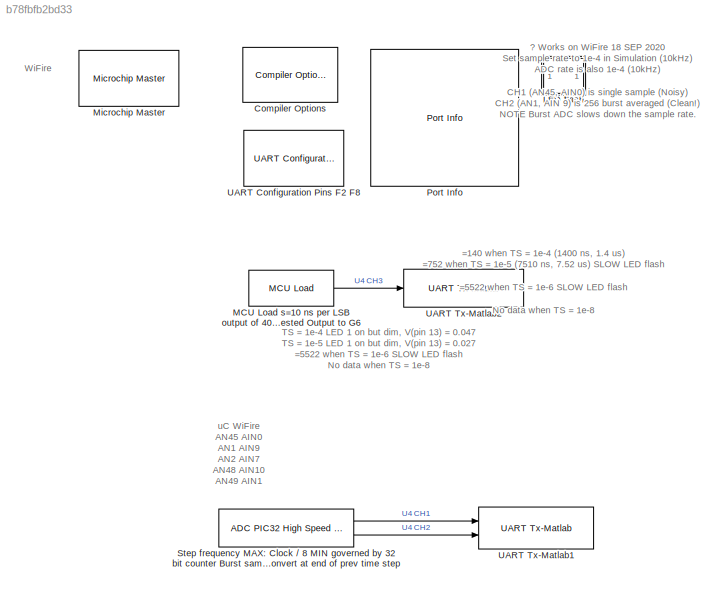
MODEL slx_b78fbfb2bd33
KIND model
CONFIG AbsTol = auto
CONFIG EnableMultiTasking = on
CONFIG FixedStep = 1e-4
CONFIG MaxStep = auto
CONFIG MinStep = auto
CONFIG RelTol = 1e-3
CONFIG SampleTimeConstraint = Unconstrained
CONFIG Solver = FixedStepDiscrete
CONFIG SolverName = FixedStepDiscrete
CONFIG StartTime = 0.0
CONFIG StopTime = inf
BLOCK [Reference] Compiler Options  REF=MCHP_Blockset/System Configuration/Compiler Options
  Ports = []
  Priority = 1
  SourceBlock = MCHP_Blockset/System Configuration/Compiler Options
  SourceProductName = MPLAB Device Blocks for Simulink
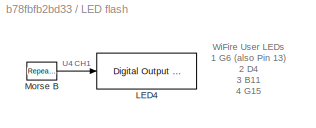
BLOCK [SubSystem] LED flash
  Ports = []
  RequestExecContextInheritance = off
BLOCK [Reference] LED flash/LED4  REF=MCHP_Blockset/Digital IO/Digital Output
Write
  Ports = [1]
  SourceBlock = MCHP_Blockset/Digital IO/Digital Output\nWrite
  SourceProductName = MPLAB® Device Blocks for Simulink®
  SourceType = Output driver for Digital Output Pins
BLOCK [Reference] LED flash/Morse B  REF=simulink/Sources/Repeating
Sequence
Stair
  Ports = [0, 1]
  SourceBlock = simulink/Sources/Repeating\nSequence\nStair
  SourceProductBaseCode = SL
  SourceProductName = Simulink
  SourceType = Repeating Sequence Stair
BLOCK [Reference] MCU Load s=10 ns per LSB output of 400 is 4us Output >TS is OVERRUN? Not Tested Output to G6  REF=MCHP_Blockset/Profiling/MCU Load
  Commented = on
  Ports = [0, 1]
  SourceBlock = MCHP_Blockset/Profiling/MCU Load
  SourceProductName = MPLAB Device Blocks for Simulink
  SourceType = MCU Load (Profile execution time)
BLOCK [Reference] Microchip Master  REF=MCHP_Blockset/System Configuration/Microchip Master
  Ports = []
  Priority = 1
  SourceBlock = MCHP_Blockset/System Configuration/Microchip Master
  SourceProductName = MPLAB® Device Blocks for Simulink®
BLOCK [Reference] Port Info  REF=MCHP_Blockset/System Info/Port Info
  Ports = []
  SourceBlock = MCHP_Blockset/System Info/Port Info
  SourceProductName = MPLAB Device Blocks for Simulink
BLOCK [Reference] Step frequency MAX: Clock // 8 MIN governed by 32 bit counter Burst sample works set convert at end of prev time step  REF=MCHP_Blockset/Analog IO/ADC PIC32
High Speed SAR
  Ports = [0, 2]
  SourceBlock = MCHP_Blockset/Analog IO/ADC PIC32\nHigh Speed SAR
  SourceProductName = MPLAB® Device Blocks for Simulink®
  SourceType = ADC PIC32 EF family
  UserDataPersistent = on
BLOCK [Reference] UART Configuration Pins F2 F8  REF=MCHP_Blockset/BUS UART/UART Configuration
  Ports = []
  SourceBlock = MCHP_Blockset/BUS UART/UART Configuration
  SourceProductName = MPLAB Device Blocks for Simulink
  SourceType = Configuration for UART peripheral
BLOCK [Reference] UART Tx-Matlab1  REF=MCHP_Blockset/BUS UART/UART Tx-Matlab
  Ports = [2]
  SourceBlock = MCHP_Blockset/BUS UART/UART Tx-Matlab
  SourceProductName = MPLAB® Device Blocks for Simulink®
  SourceType = Higl Level UART protocol
BLOCK [Reference] UART Tx-Matlab2  REF=MCHP_Blockset/BUS UART/UART Tx-Matlab
  Commented = on
  Ports = [1]
  SourceBlock = MCHP_Blockset/BUS UART/UART Tx-Matlab
  SourceProductName = MPLAB® Device Blocks for Simulink®
  SourceType = Higl Level UART protocol
ANNOTATION (root): ? Works on WiFire 18 SEP 2020 Set sample rate to 1e-4 in Simulation (10kHz) ADC rate is also 1e-4 (10kHz) CH1 (AN45, AIN0) is single sample (Noisy) CH2 (AN1, AIN 9) is 256 burst averaged (Clean!) NOTE Burst ADC slows down the sample rate. LED Flash is SLOWER if ? ADC time > sample time e.g. for TS = 1e-4, 100us, and ADC time = 69.12 us (less than 100 so OK) Oscillator set to 24e6 in Master (How to...<+12ch>
ANNOTATION (root): =140 when TS = 1e-4 (1400 ns, 1.4 us) =752 when TS = 1e-5 (7510 ns, 7.52 us) SLOW LED flash =5522 when TS = 1e-6 SLOW LED flash No data when TS = 1e-8
ANNOTATION (root): TS = 1e-4 LED 1 on but dim, V(pin 13) = 0.047 TS = 1e-5 LED 1 on but dim, V(pin 13) = 0.027 =5522 when TS = 1e-6 SLOW LED flash No data when TS = 1e-8
ANNOTATION (root): WiFire
ANNOTATION (root): uC WiFire AN45 AIN0 AN1 AIN9 AN2 AIN7 AN48 AIN10 AN49 AIN1
ANNOTATION LED flash: WiFire User LEDs 1 G6 (also Pin 13) 2 D4 3 B11 4 G15
LINE LED flash/Morse B:1 -> LED flash/LED4:1
LINE MCU Load s=10 ns per LSB output of 400 is 4us Output >TS is OVERRUN? Not Tested Output to G6:1 -> UART Tx-Matlab2:1
LINE Step frequency MAX: Clock // 8 MIN governed by 32 bit counter Burst sample works set convert at end of prev time step:1 -> UART Tx-Matlab1:1
LINE Step frequency MAX: Clock // 8 MIN governed by 32 bit counter Burst sample works set convert at end of prev time step:2 -> UART Tx-Matlab1:2
